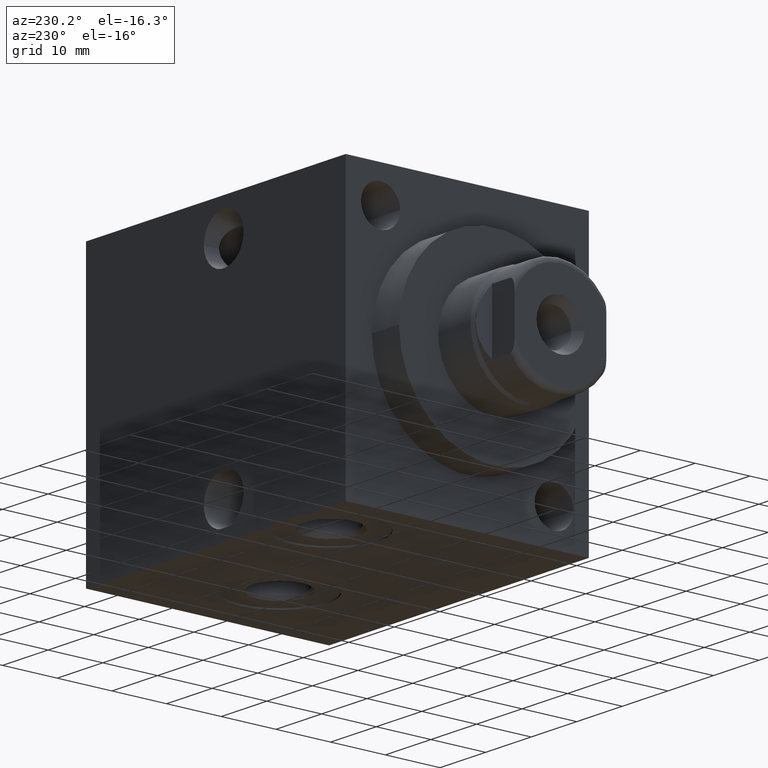
[diagram: clean part render]
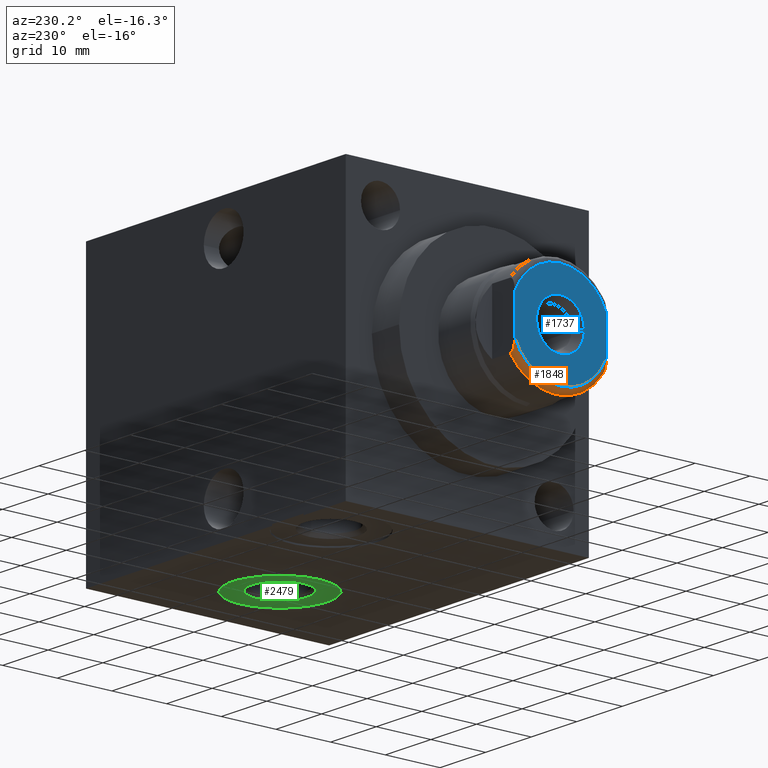
[diagram: same view with three faces highlighted in distinct colors, each labeled with its STEP entity id]
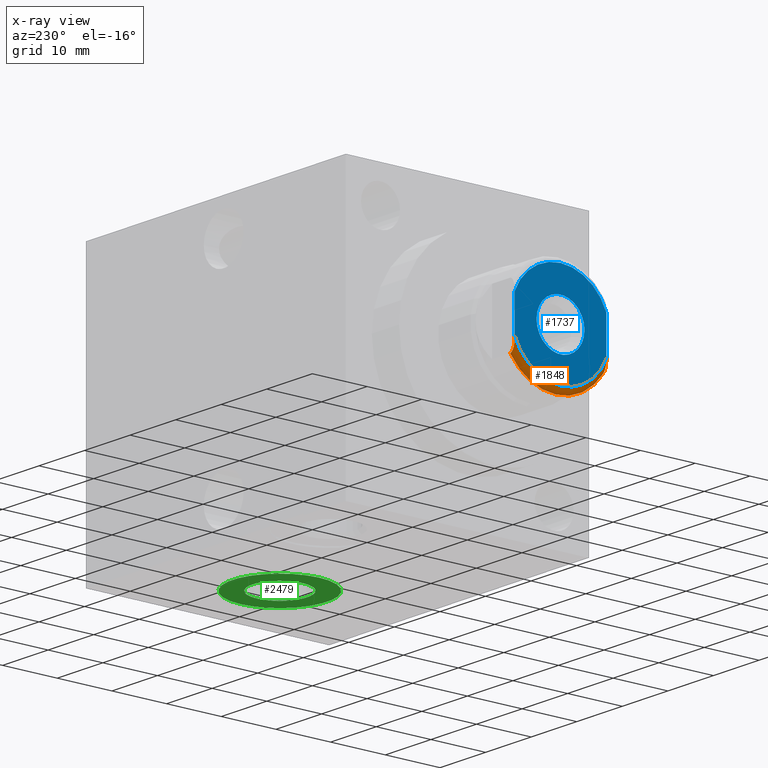
[diagram: x-ray of the same camera — body ghosted, the three highlighted faces saturated]
A machine part, auxiliary view with three faces highlighted in distinct colors.
The next image is the same camera in x-ray (body ghosted, the three faces saturated) — at least one of them is partly hidden behind the body in this view.
Their STEP definitions:

[orange] entity #1848 — the highlighted toroidal blend (fillet) surface has major radius 9.017 mm and minor (blend) radius 1.016 mm.
#285=CARTESIAN_POINT('',(-1.9431E1,0.E0,0.E0));
#286=DIRECTION('',(1.E0,0.E0,0.E0));
#287=DIRECTION('',(0.E0,-8.354430379747E-1,-5.495770467365E-1));
#288=AXIS2_PLACEMENT_3D('',#285,#286,#287);
#293=CARTESIAN_POINT('',(-1.9431E1,0.E0,0.E0));
#294=DIRECTION('',(-1.E0,0.E0,0.E0));
#295=DIRECTION('',(0.E0,8.354430379747E-1,-5.495770467365E-1));
#296=AXIS2_PLACEMENT_3D('',#293,#294,#295);
#301=CARTESIAN_POINT('',(-2.0447E1,8.382E0,-3.323908146680E0));
#302=CARTESIAN_POINT('',(-2.0447E1,8.382E0,-3.408393684010E0));
#303=CARTESIAN_POINT('',(-2.044413241118E1,8.382E0,-3.577879912760E0));
#304=CARTESIAN_POINT('',(-2.042936421340E1,8.382E0,-3.832390752453E0));
#305=CARTESIAN_POINT('',(-2.040131190582E1,8.382E0,-4.090984621087E0));
#306=CARTESIAN_POINT('',(-2.035598878474E1,8.382E0,-4.353774291733E0));
#307=CARTESIAN_POINT('',(-2.028864902339E1,8.382E0,-4.616635485679E0));
#308=CARTESIAN_POINT('',(-2.019409031454E1,8.382E0,-4.873125489499E0));
#309=CARTESIAN_POINT('',(-2.006221833474E1,8.382E0,-5.119585703106E0));
#310=CARTESIAN_POINT('',(-1.988399905986E1,8.382E0,-5.335819757337E0));
#311=CARTESIAN_POINT('',(-1.966257561311E1,8.382E0,-5.481960808960E0));
#312=CARTESIAN_POINT('',(-1.951031138893E1,8.382E0,-5.513906509907E0));
#313=CARTESIAN_POINT('',(-1.9431E1,8.382E0,-5.513906509907E0));
#318=CARTESIAN_POINT('',(-2.0447E1,0.E0,0.E0));
#319=DIRECTION('',(-1.E0,0.E0,0.E0));
#320=DIRECTION('',(0.E0,9.295774647887E-1,-3.686268261494E-1));
#321=AXIS2_PLACEMENT_3D('',#318,#319,#320);
#326=CARTESIAN_POINT('',(-1.9431E1,-8.382E0,-5.513906509907E0));
#327=CARTESIAN_POINT('',(-1.951075379699E1,-8.382E0,-5.513906509907E0));
#328=CARTESIAN_POINT('',(-1.966358004385E1,-8.382E0,-5.481575852673E0));
#329=CARTESIAN_POINT('',(-1.988466130131E1,-8.382E0,-5.335099324623E0));
#330=CARTESIAN_POINT('',(-2.006204504255E1,-8.382E0,-5.119680363898E0));
#331=CARTESIAN_POINT('',(-2.019335681787E1,-8.382E0,-4.874607738162E0));
#332=CARTESIAN_POINT('',(-2.028762308372E1,-8.382E0,-4.619786688399E0));
#333=CARTESIAN_POINT('',(-2.035500381817E1,-8.382E0,-4.358308797112E0));
#334=CARTESIAN_POINT('',(-2.040060942270E1,-8.382E0,-4.096062193126E0));
#335=CARTESIAN_POINT('',(-2.042903347488E1,-8.382E0,-3.836736196682E0));
#336=CARTESIAN_POINT('',(-2.044407771421E1,-8.382E0,-3.580229556329E0));
#337=CARTESIAN_POINT('',(-2.0447E1,-8.382E0,-3.409242600244E0));
#338=CARTESIAN_POINT('',(-2.0447E1,-8.382E0,-3.323908156025E0));
#1577=CARTESIAN_POINT('',(-1.9431E1,0.E0,-1.0033E1));
#1579=VERTEX_POINT('',#1577);
#1584=CARTESIAN_POINT('',(-2.0447E1,8.382E0,-3.323908146680E0));
#1586=VERTEX_POINT('',#1584);
#1588=CARTESIAN_POINT('',(-2.0447E1,-8.382E0,-3.323908156025E0));
#1590=VERTEX_POINT('',#1588);
#1596=CARTESIAN_POINT('',(-1.9431E1,-8.382E0,-5.513906509907E0));
#1598=VERTEX_POINT('',#1596);
#1602=CARTESIAN_POINT('',(-1.9431E1,8.382E0,-5.513906509907E0));
#1603=VERTEX_POINT('',#1602);
#1833=CARTESIAN_POINT('',(-1.9431E1,0.E0,0.E0));
#1834=DIRECTION('',(1.E0,0.E0,0.E0));
#1835=DIRECTION('',(0.E0,0.E0,1.E0));
#1836=AXIS2_PLACEMENT_3D('',#1833,#1834,#1835);
#1837=TOROIDAL_SURFACE('',#1836,9.017E0,1.016E0);
#1839=ORIENTED_EDGE('',*,*,#1838,.T.);
#1841=ORIENTED_EDGE('',*,*,#1840,.F.);
#1842=ORIENTED_EDGE('',*,*,#1780,.F.);
#1843=ORIENTED_EDGE('',*,*,#1728,.T.);
#1845=ORIENTED_EDGE('',*,*,#1844,.F.);
#1846=EDGE_LOOP('',(#1839,#1841,#1842,#1843,#1845));
#1847=FACE_OUTER_BOUND('',#1846,.F.);
#1848=ADVANCED_FACE('',(#1847),#1837,.T.);
#289=CIRCLE('',#288,1.0033E1);
#297=CIRCLE('',#296,1.0033E1);
#314=B_SPLINE_CURVE_WITH_KNOTS('',3,(#301,#302,#303,#304,#305,#306,#307,#308,
#309,#310,#311,#312,#313),.UNSPECIFIED.,.F.,.F.,(4,1,1,1,1,1,1,1,1,1,4),(0.E0,
1.E-1,2.E-1,3.E-1,4.E-1,5.E-1,6.E-1,7.E-1,8.E-1,9.E-1,1.E0),.UNSPECIFIED.);
#322=CIRCLE('',#321,9.017E0);
#339=B_SPLINE_CURVE_WITH_KNOTS('',3,(#326,#327,#328,#329,#330,#331,#332,#333,
#334,#335,#336,#337,#338),.UNSPECIFIED.,.F.,.F.,(4,1,1,1,1,1,1,1,1,1,4),(0.E0,
1.E-1,2.E-1,3.E-1,4.E-1,5.E-1,6.E-1,7.E-1,8.E-1,9.E-1,1.E0),.UNSPECIFIED.);
#1728=EDGE_CURVE('',#1586,#1590,#322,.T.);
#1780=EDGE_CURVE('',#1586,#1603,#314,.T.);
#1838=EDGE_CURVE('',#1598,#1579,#289,.T.);
#1840=EDGE_CURVE('',#1603,#1579,#297,.T.);
#1844=EDGE_CURVE('',#1598,#1590,#339,.T.);

[blue] entity #1737 — the highlighted planar face has unit normal (-1, 0, 0).
#154=CARTESIAN_POINT('',(-2.0447E1,0.E0,0.E0));
#155=DIRECTION('',(-1.E0,0.E0,0.E0));
#156=DIRECTION('',(0.E0,1.E0,0.E0));
#157=AXIS2_PLACEMENT_3D('',#154,#155,#156);
#162=CARTESIAN_POINT('',(-2.0447E1,0.E0,0.E0));
#163=DIRECTION('',(-1.E0,0.E0,0.E0));
#164=DIRECTION('',(0.E0,-1.E0,0.E0));
#165=AXIS2_PLACEMENT_3D('',#162,#163,#164);
#170=DIRECTION('',(0.E0,0.E0,1.E0));
#171=VECTOR('',#170,6.647816238068E0);
#172=CARTESIAN_POINT('',(-2.0447E1,8.382E0,-3.323908146680E0));
#173=LINE('',#172,#171);
#177=DIRECTION('',(0.E0,0.E0,1.E0));
#178=VECTOR('',#177,6.647816247414E0);
#179=CARTESIAN_POINT('',(-2.0447E1,-8.382E0,-3.323908156025E0));
#180=LINE('',#179,#178);
#227=CARTESIAN_POINT('',(-2.0447E1,0.E0,0.E0));
#228=DIRECTION('',(-1.E0,0.E0,0.E0));
#229=DIRECTION('',(0.E0,-9.295774647887E-1,3.686268261494E-1));
#230=AXIS2_PLACEMENT_3D('',#227,#228,#229);
#318=CARTESIAN_POINT('',(-2.0447E1,0.E0,0.E0));
#319=DIRECTION('',(-1.E0,0.E0,0.E0));
#320=DIRECTION('',(0.E0,9.295774647887E-1,-3.686268261494E-1));
#321=AXIS2_PLACEMENT_3D('',#318,#319,#320);
#1568=CARTESIAN_POINT('',(-2.0447E1,4.3815E0,0.E0));
#1569=CARTESIAN_POINT('',(-2.0447E1,-4.3815E0,0.E0));
#1570=VERTEX_POINT('',#1568);
#1571=VERTEX_POINT('',#1569);
#1584=CARTESIAN_POINT('',(-2.0447E1,8.382E0,-3.323908146680E0));
#1585=CARTESIAN_POINT('',(-2.0447E1,8.382E0,3.323908091389E0));
#1586=VERTEX_POINT('',#1584);
#1587=VERTEX_POINT('',#1585);
#1588=CARTESIAN_POINT('',(-2.0447E1,-8.382E0,-3.323908156025E0));
#1589=CARTESIAN_POINT('',(-2.0447E1,-8.382E0,3.323908091389E0));
#1590=VERTEX_POINT('',#1588);
#1591=VERTEX_POINT('',#1589);
#1717=CARTESIAN_POINT('',(-2.0447E1,0.E0,0.E0));
#1718=DIRECTION('',(-1.E0,0.E0,0.E0));
#1719=DIRECTION('',(0.E0,0.E0,1.E0));
#1720=AXIS2_PLACEMENT_3D('',#1717,#1718,#1719);
#1721=PLANE('',#1720);
#1723=ORIENTED_EDGE('',*,*,#1722,.T.);
#1725=ORIENTED_EDGE('',*,*,#1724,.F.);
#1727=ORIENTED_EDGE('',*,*,#1726,.F.);
#1729=ORIENTED_EDGE('',*,*,#1728,.F.);
#1730=EDGE_LOOP('',(#1723,#1725,#1727,#1729));
#1731=FACE_OUTER_BOUND('',#1730,.F.);
#1732=ORIENTED_EDGE('',*,*,#1695,.T.);
#1734=ORIENTED_EDGE('',*,*,#1733,.T.);
#1735=EDGE_LOOP('',(#1732,#1734));
#1736=FACE_BOUND('',#1735,.F.);
#1737=ADVANCED_FACE('',(#1731,#1736),#1721,.T.);
#158=CIRCLE('',#157,4.3815E0);
#166=CIRCLE('',#165,4.3815E0);
#231=CIRCLE('',#230,9.017E0);
#322=CIRCLE('',#321,9.017E0);
#1695=EDGE_CURVE('',#1570,#1571,#158,.T.);
#1722=EDGE_CURVE('',#1586,#1587,#173,.T.);
#1724=EDGE_CURVE('',#1591,#1587,#231,.T.);
#1726=EDGE_CURVE('',#1590,#1591,#180,.T.);
#1728=EDGE_CURVE('',#1586,#1590,#322,.T.);
#1733=EDGE_CURVE('',#1571,#1570,#166,.T.);

[green] entity #2479 — the highlighted planar face has unit normal (0, 0, 1).
#937=CARTESIAN_POINT('',(4.1148E1,0.E0,-2.5146E1));
#938=DIRECTION('',(0.E0,0.E0,1.E0));
#939=DIRECTION('',(1.E0,0.E0,0.E0));
#940=AXIS2_PLACEMENT_3D('',#937,#938,#939);
#945=CARTESIAN_POINT('',(4.1148E1,0.E0,-2.5146E1));
#946=DIRECTION('',(0.E0,0.E0,1.E0));
#947=DIRECTION('',(-1.E0,0.E0,0.E0));
#948=AXIS2_PLACEMENT_3D('',#945,#946,#947);
#953=CARTESIAN_POINT('',(4.1148E1,0.E0,-2.5146E1));
#954=DIRECTION('',(0.E0,0.E0,-1.E0));
#955=DIRECTION('',(1.E0,0.E0,0.E0));
#956=AXIS2_PLACEMENT_3D('',#953,#954,#955);
#961=CARTESIAN_POINT('',(4.1148E1,0.E0,-2.5146E1));
#962=DIRECTION('',(0.E0,0.E0,-1.E0));
#963=DIRECTION('',(-1.E0,0.E0,0.E0));
#964=AXIS2_PLACEMENT_3D('',#961,#962,#963);
#1504=CARTESIAN_POINT('',(4.9784E1,0.E0,-2.5146E1));
#1505=CARTESIAN_POINT('',(3.2512E1,0.E0,-2.5146E1));
#1506=VERTEX_POINT('',#1504);
#1507=VERTEX_POINT('',#1505);
#1524=CARTESIAN_POINT('',(4.61645E1,0.E0,-2.5146E1));
#1525=CARTESIAN_POINT('',(3.61315E1,0.E0,-2.5146E1));
#1526=VERTEX_POINT('',#1524);
#1527=VERTEX_POINT('',#1525);
#2464=CARTESIAN_POINT('',(4.1148E1,0.E0,-2.5146E1));
#2465=DIRECTION('',(0.E0,0.E0,1.E0));
#2466=DIRECTION('',(1.E0,0.E0,0.E0));
#2467=AXIS2_PLACEMENT_3D('',#2464,#2465,#2466);
#2468=PLANE('',#2467);
#2469=ORIENTED_EDGE('',*,*,#2444,.T.);
#2470=ORIENTED_EDGE('',*,*,#2458,.T.);
#2471=EDGE_LOOP('',(#2469,#2470));
#2472=FACE_OUTER_BOUND('',#2471,.F.);
#2474=ORIENTED_EDGE('',*,*,#2473,.T.);
#2476=ORIENTED_EDGE('',*,*,#2475,.T.);
#2477=EDGE_LOOP('',(#2474,#2476));
#2478=FACE_BOUND('',#2477,.F.);
#2479=ADVANCED_FACE('',(#2472,#2478),#2468,.F.);
#941=CIRCLE('',#940,8.636E0);
#949=CIRCLE('',#948,8.636E0);
#957=CIRCLE('',#956,5.0165E0);
#965=CIRCLE('',#964,5.0165E0);
#2444=EDGE_CURVE('',#1506,#1507,#941,.T.);
#2458=EDGE_CURVE('',#1507,#1506,#949,.T.);
#2473=EDGE_CURVE('',#1526,#1527,#957,.T.);
#2475=EDGE_CURVE('',#1527,#1526,#965,.T.);